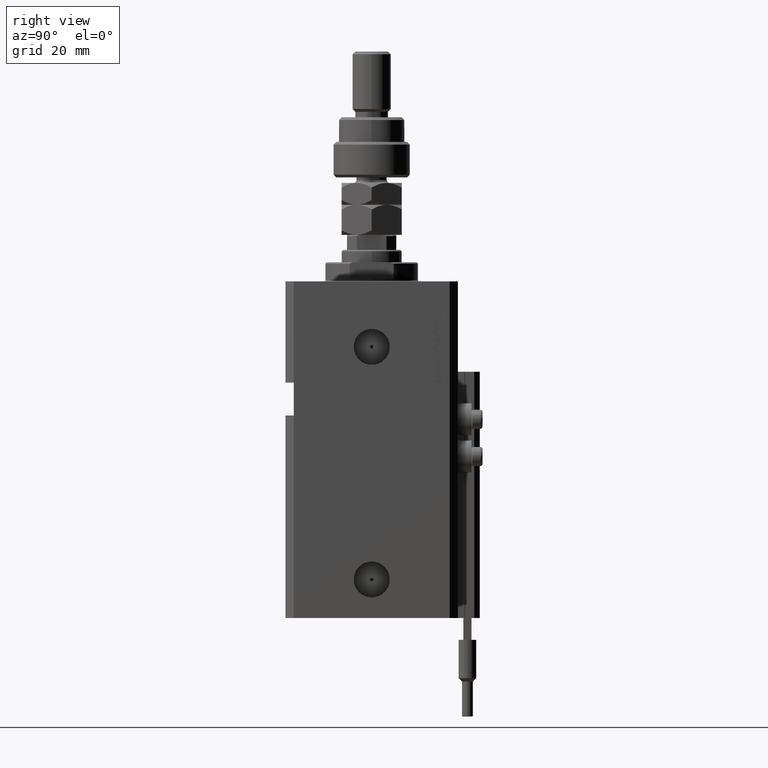
[diagram: clean part render]
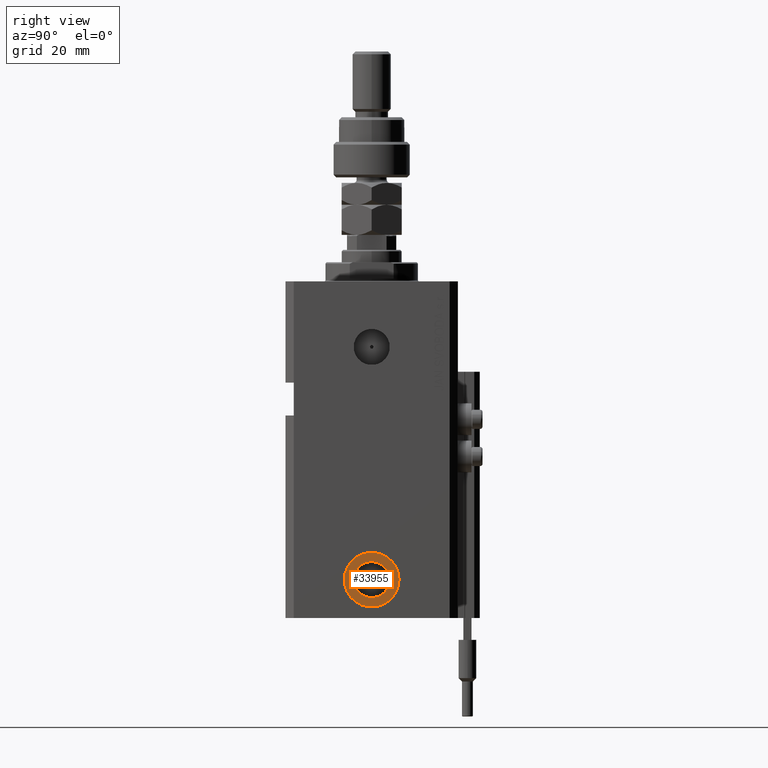
[diagram: same view with one face highlighted and labeled with its STEP entity id]
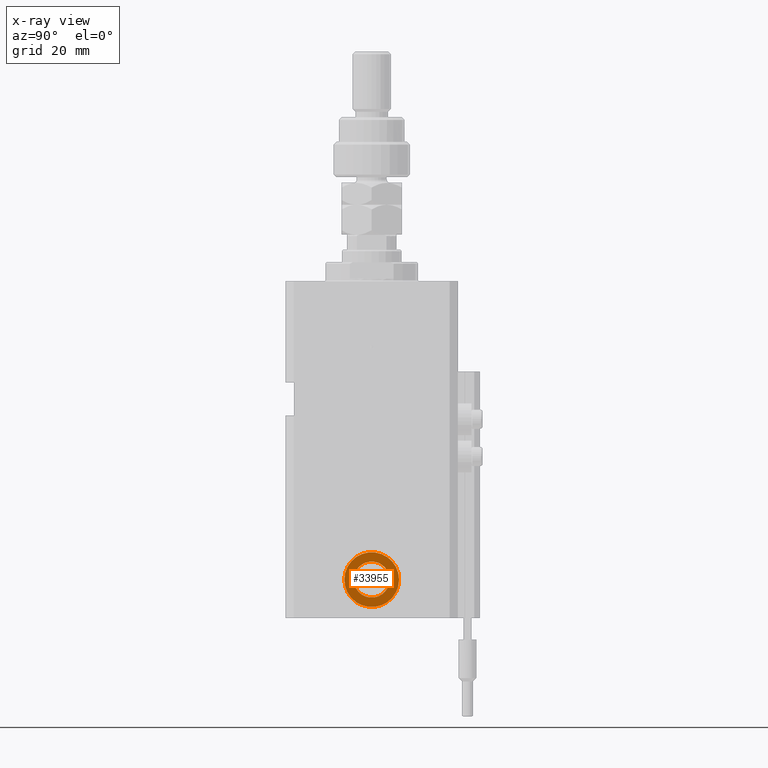
[diagram: x-ray of the same camera — body ghosted, the highlighted face saturated]
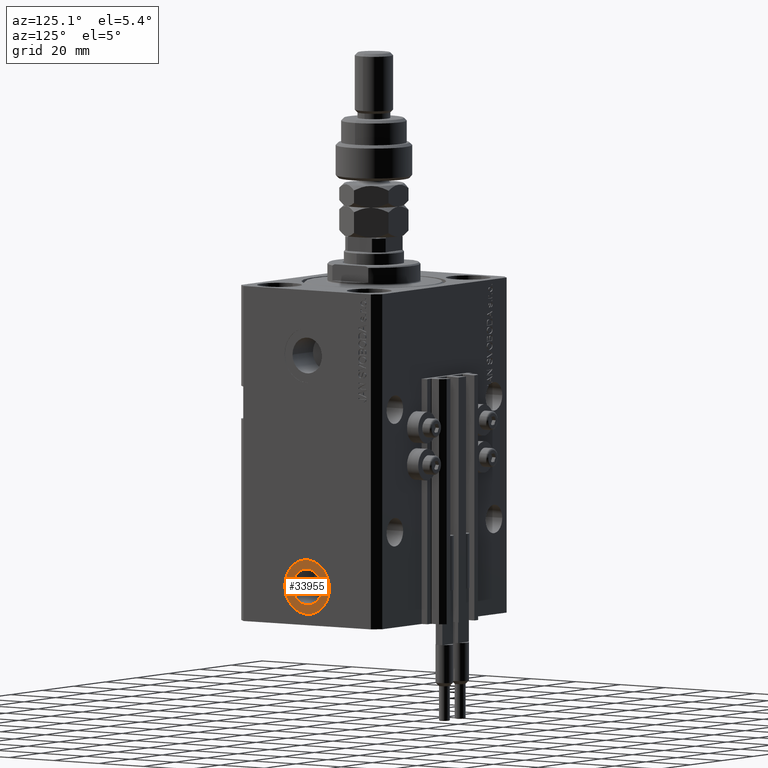
[diagram: same view with one face highlighted and labeled with its STEP entity id]
A machine part, right view. The second image highlights one B-rep face of the part: STEP entity #33955.
The next image is the same camera in x-ray: the body ghosted, the highlighted face saturated — about 0% of this face is hidden behind the body in this view.
A second angle (auxiliary view) of the same face is appended — the face is thin or edge-on in the first view.
In plain terms, the highlighted planar face has unit normal (1, -0, 0).
Its self-contained STEP definition (entity closure, byte-faithful):
#719 = VERTEX_POINT ( 'NONE', #36760 ) ;
#1282 = ORIENTED_EDGE ( 'NONE', *, *, #38774, .T. ) ;
#2945 = CIRCLE ( 'NONE', #31351, 6.579999999999987637 ) ;
#4268 = EDGE_CURVE ( 'NONE', #719, #40386, #26857, .T. ) ;
#8246 = ORIENTED_EDGE ( 'NONE', *, *, #4268, .F. ) ;
#10715 = FACE_BOUND ( 'NONE', #11971, .T. ) ;
#11168 = CARTESIAN_POINT ( 'NONE',  ( 42.40000000000026148, -3.763483751660370480E-13, -109.0000000000000000 ) ) ;
#11971 = EDGE_LOOP ( 'NONE', ( #8246, #31173 ) ) ;
#14446 = DIRECTION ( 'NONE',  ( 1.000000000000000000, -1.334402673828349134E-14, 0.000000000000000000 ) ) ;
#14952 = DIRECTION ( 'NONE',  ( 1.318389841742374023E-14, 1.000000000000000000, 0.000000000000000000 ) ) ;
#14955 = AXIS2_PLACEMENT_3D ( 'NONE', #18324, #18063, #34827 ) ;
#16656 = EDGE_LOOP ( 'NONE', ( #17704, #1282 ) ) ;
#17704 = ORIENTED_EDGE ( 'NONE', *, *, #28335, .T. ) ;
#18063 = DIRECTION ( 'NONE',  ( 1.000000000000000000, -1.334402673828349134E-14, 0.000000000000000000 ) ) ;
#18324 = CARTESIAN_POINT ( 'NONE',  ( 42.40000000000026148, -3.763483751660370480E-13, -109.0000000000000000 ) ) ;
#20275 = CIRCLE ( 'NONE', #48685, 9.999999999999994671 ) ;
#20941 = DIRECTION ( 'NONE',  ( 1.370906090437600963E-14, 1.000000000000000000, 0.000000000000000000 ) ) ;
#22480 = EDGE_CURVE ( 'NONE', #40386, #719, #2945, .T. ) ;
#23104 = CARTESIAN_POINT ( 'NONE',  ( 42.40000000000013358, -10.00000000000037126, -109.0000000000000000 ) ) ;
#24796 = CARTESIAN_POINT ( 'NONE',  ( 42.40000000000039648, 9.999999999999618083, -109.0000000000000000 ) ) ;
#26857 = CIRCLE ( 'NONE', #31044, 6.579999999999987637 ) ;
#28165 = DIRECTION ( 'NONE',  ( 1.000000000000000000, -1.334402673828349134E-14, 0.000000000000000000 ) ) ;
#28335 = EDGE_CURVE ( 'NONE', #48801, #39938, #40792, .T. ) ;
#29330 = CARTESIAN_POINT ( 'NONE',  ( 42.40000000000026148, -3.763483751660370480E-13, -109.0000000000000000 ) ) ;
#30372 = PLANE ( 'NONE',  #14955 ) ;
#31044 = AXIS2_PLACEMENT_3D ( 'NONE', #43618, #28165, #31581 ) ;
#31173 = ORIENTED_EDGE ( 'NONE', *, *, #22480, .F. ) ;
#31351 = AXIS2_PLACEMENT_3D ( 'NONE', #29330, #41622, #20941 ) ;
#31581 = DIRECTION ( 'NONE',  ( 1.370906090437600963E-14, 1.000000000000000000, 0.000000000000000000 ) ) ;
#33955 = ADVANCED_FACE ( 'NONE', ( #10715, #37979 ), #30372, .T. ) ;
#34827 = DIRECTION ( 'NONE',  ( 1.334402673828349134E-14, 1.000000000000000000, 0.000000000000000000 ) ) ;
#36171 = CARTESIAN_POINT ( 'NONE',  ( 42.40000000000017621, -6.580000000000363336, -109.0000000000000000 ) ) ;
#36760 = CARTESIAN_POINT ( 'NONE',  ( 42.40000000000035385, 6.579999999999611049, -109.0000000000000000 ) ) ;
#37450 = AXIS2_PLACEMENT_3D ( 'NONE', #11168, #50715, #51220 ) ;
#37979 = FACE_OUTER_BOUND ( 'NONE', #16656, .T. ) ;
#38774 = EDGE_CURVE ( 'NONE', #39938, #48801, #20275, .T. ) ;
#39938 = VERTEX_POINT ( 'NONE', #23104 ) ;
#40386 = VERTEX_POINT ( 'NONE', #36171 ) ;
#40792 = CIRCLE ( 'NONE', #37450, 9.999999999999994671 ) ;
#41622 = DIRECTION ( 'NONE',  ( 1.000000000000000000, -1.334402673828349134E-14, 0.000000000000000000 ) ) ;
#42214 = CARTESIAN_POINT ( 'NONE',  ( 42.40000000000026148, -3.763483751660370480E-13, -109.0000000000000000 ) ) ;
#43618 = CARTESIAN_POINT ( 'NONE',  ( 42.40000000000026148, -3.763483751660370480E-13, -109.0000000000000000 ) ) ;
#48685 = AXIS2_PLACEMENT_3D ( 'NONE', #42214, #14446, #14952 ) ;
#48801 = VERTEX_POINT ( 'NONE', #24796 ) ;
#50715 = DIRECTION ( 'NONE',  ( 1.000000000000000000, -1.334402673828349134E-14, 0.000000000000000000 ) ) ;
#51220 = DIRECTION ( 'NONE',  ( 1.318389841742374023E-14, 1.000000000000000000, 0.000000000000000000 ) ) ;